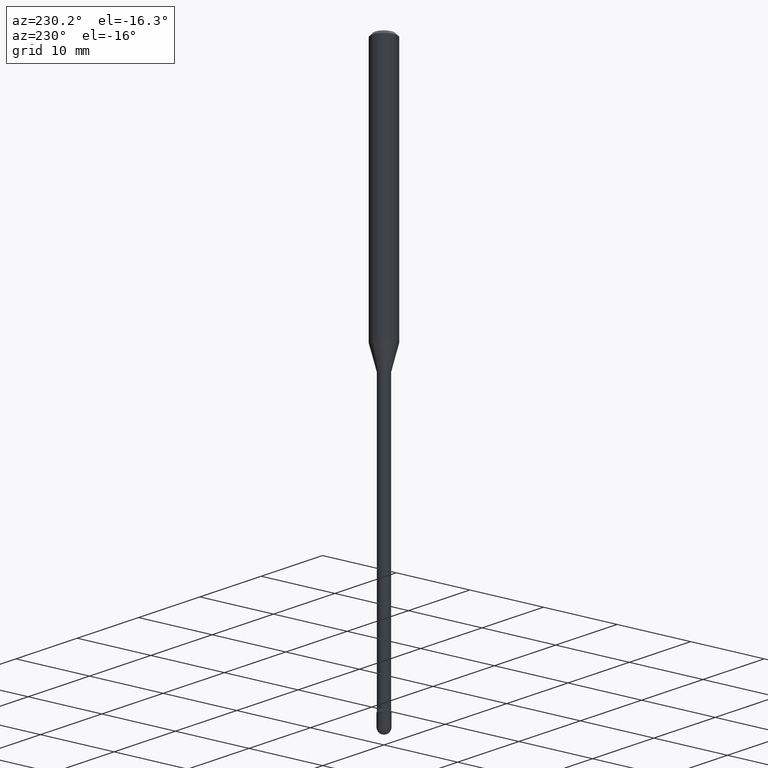
[diagram: clean part render]
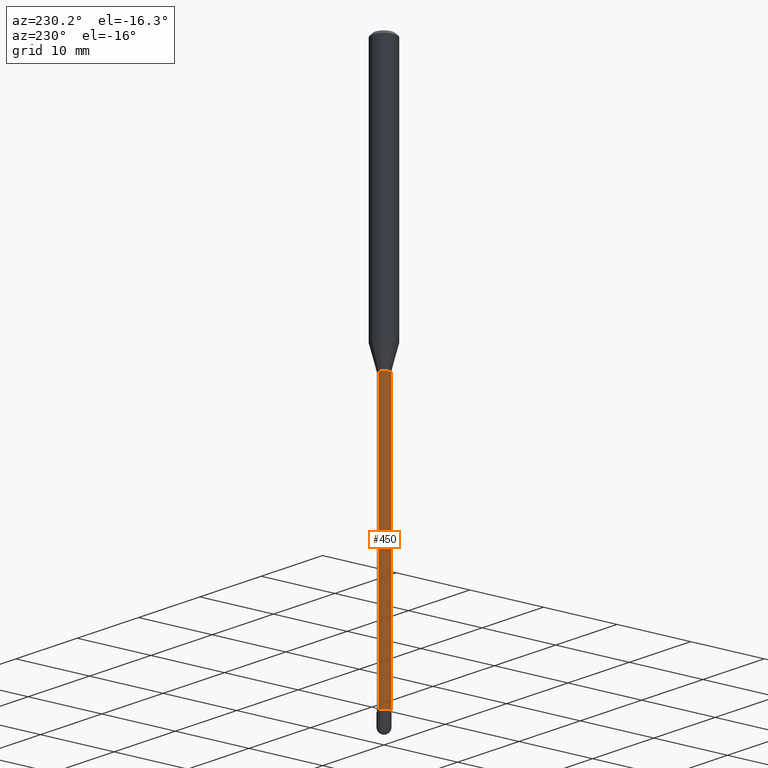
[diagram: same view with one face highlighted and labeled with its STEP entity id]
A machine part, auxiliary view. The second image highlights one B-rep face of the part: STEP entity #450.
In plain terms, the highlighted cylindrical surface (edge-blend (fillet) strip) has radius 0.7404 mm, axis along (-0, 0, 1).
Its self-contained STEP definition (entity closure, byte-faithful):
#16 = AXIS2_PLACEMENT_3D ( 'NONE', #517, #319, #34 ) ;
#34 = DIRECTION ( 'NONE',  ( -6.982962677686265922E-15, -1.000000000000000000, 3.491489560357350383E-15 ) ) ;
#42 = DIRECTION ( 'NONE',  ( -2.445463065132452416E-29, 3.491489560357349594E-15, 1.000000000000000000 ) ) ;
#55 = EDGE_CURVE ( 'NONE', #280, #57, #354, .T. ) ;
#57 = VERTEX_POINT ( 'NONE', #502 ) ;
#66 = CARTESIAN_POINT ( 'NONE',  ( 3.550750714246292471E-29, -5.069554812331978969E-15, -1.451974787463811145 ) ) ;
#73 = CYLINDRICAL_SURFACE ( 'NONE', #16, 0.02915000000000008210 ) ;
#88 = CARTESIAN_POINT ( 'NONE',  ( 2.071232074741406617E-16, 0.02914999999999492650, -1.451974787463811145 ) ) ;
#105 = VERTEX_POINT ( 'NONE', #245 ) ;
#108 = EDGE_CURVE ( 'NONE', #105, #280, #223, .T. ) ;
#112 = FACE_OUTER_BOUND ( 'NONE', #330, .T. ) ;
#130 = VECTOR ( 'NONE', #297, 39.37007874015748143 ) ;
#138 = DIRECTION ( 'NONE',  ( -2.445463065132452416E-29, 3.491489560357349988E-15, 1.000000000000000000 ) ) ;
#157 = DIRECTION ( 'NONE',  ( -2.445463065132452416E-29, 3.491489560357349594E-15, 1.000000000000000000 ) ) ;
#183 = ORIENTED_EDGE ( 'NONE', *, *, #108, .F. ) ;
#184 = LINE ( 'NONE', #393, #433 ) ;
#223 = LINE ( 'NONE', #391, #130 ) ;
#226 = DIRECTION ( 'NONE',  ( -6.982962677686265922E-15, -1.000000000000000000, 0.000000000000000000 ) ) ;
#233 = CARTESIAN_POINT ( 'NONE',  ( 7.091313509203002417E-29, -1.012456390759772357E-14, -2.899783525791635341 ) ) ;
#243 = CIRCLE ( 'NONE', #261, 0.02915000000000016536 ) ;
#245 = CARTESIAN_POINT ( 'NONE',  ( 2.136957277799217274E-16, 0.02914999999999004152, -2.899783525791635341 ) ) ;
#261 = AXIS2_PLACEMENT_3D ( 'NONE', #233, #42, #226 ) ;
#280 = VERTEX_POINT ( 'NONE', #88 ) ;
#283 = VERTEX_POINT ( 'NONE', #464 ) ;
#297 = DIRECTION ( 'NONE',  ( -2.445463065132452416E-29, 3.491489560357349988E-15, 1.000000000000000000 ) ) ;
#319 = DIRECTION ( 'NONE',  ( -2.445463065132452416E-29, 3.491489560357349594E-15, 1.000000000000000000 ) ) ;
#330 = EDGE_LOOP ( 'NONE', ( #183, #501, #360, #365 ) ) ;
#354 = CIRCLE ( 'NONE', #412, 0.02915000000000000230 ) ;
#360 = ORIENTED_EDGE ( 'NONE', *, *, #437, .T. ) ;
#365 = ORIENTED_EDGE ( 'NONE', *, *, #55, .F. ) ;
#391 = CARTESIAN_POINT ( 'NONE',  ( 2.071232074740697629E-16, 0.02915000000000008210, 3.762964782068289992E-16 ) ) ;
#393 = CARTESIAN_POINT ( 'NONE',  ( -2.035533620545552294E-16, -0.02915000000000008210, 5.798503195756631272E-16 ) ) ;
#396 = EDGE_CURVE ( 'NONE', #105, #283, #243, .T. ) ;
#410 = DIRECTION ( 'NONE',  ( -6.982962677686266711E-15, -1.000000000000000000, 0.000000000000000000 ) ) ;
#412 = AXIS2_PLACEMENT_3D ( 'NONE', #66, #157, #410 ) ;
#433 = VECTOR ( 'NONE', #138, 39.37007874015748143 ) ;
#437 = EDGE_CURVE ( 'NONE', #283, #57, #184, .T. ) ;
#450 = ADVANCED_FACE ( 'NONE', ( #112 ), #73, .T. ) ;
#464 = CARTESIAN_POINT ( 'NONE',  ( -2.035533620544848975E-16, -0.02915000000001028921, -2.899783525791635341 ) ) ;
#501 = ORIENTED_EDGE ( 'NONE', *, *, #396, .T. ) ;
#502 = CARTESIAN_POINT ( 'NONE',  ( -2.035533620545191636E-16, -0.02915000000000507463, -1.451974787463811145 ) ) ;
#517 = CARTESIAN_POINT ( 'NONE',  ( -1.169113584055446105E-44, 1.669184350826100908E-30, 4.780733988912460139E-16 ) ) ;